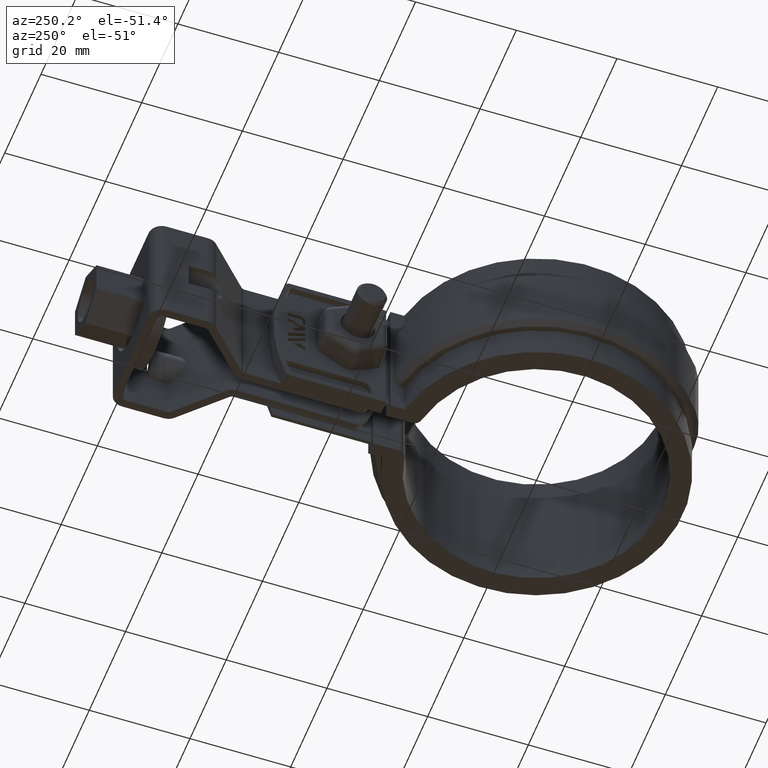
[diagram: clean part render]
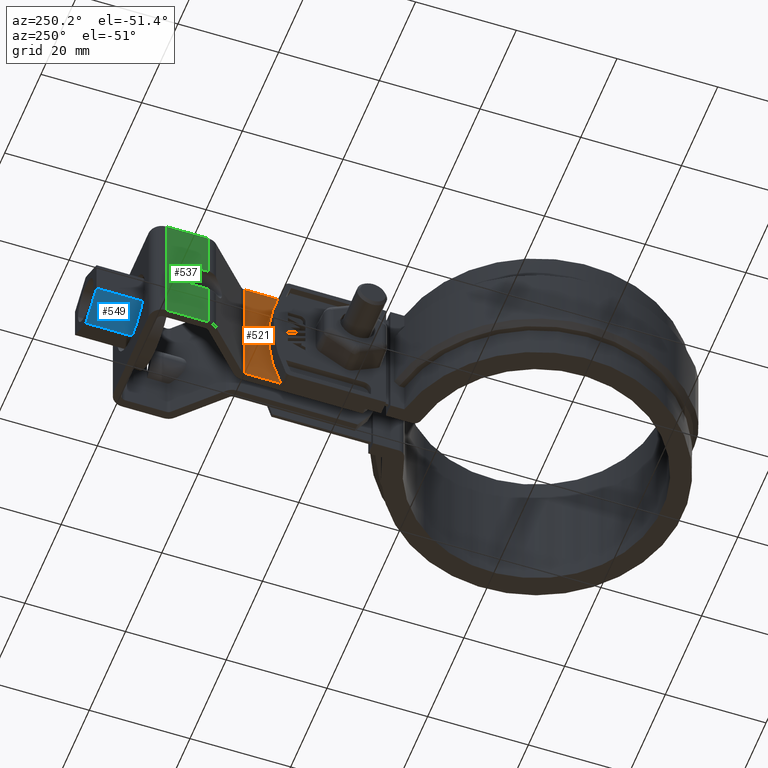
[diagram: same view with three faces highlighted in distinct colors, each labeled with its STEP entity id]
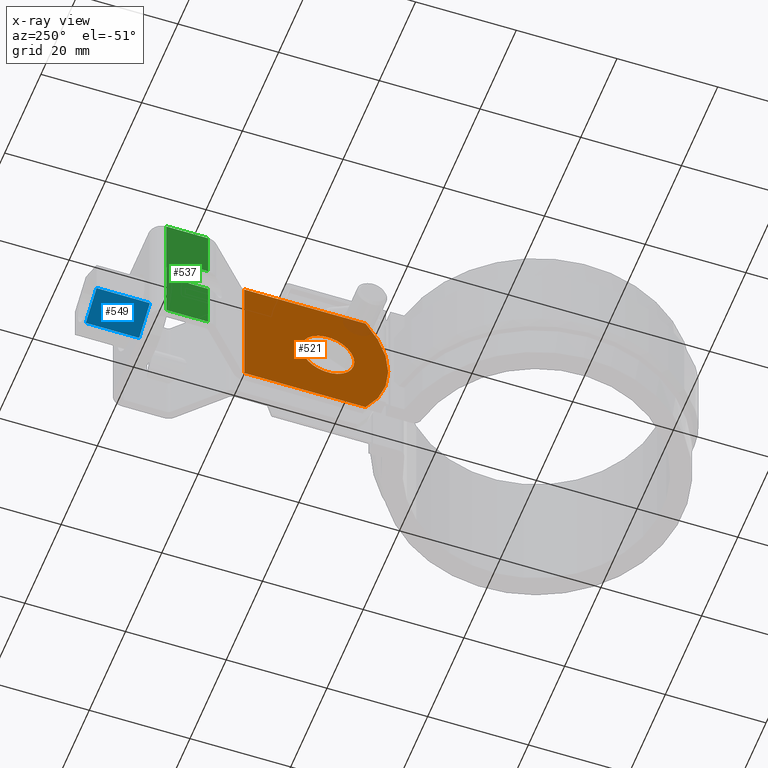
[diagram: x-ray of the same camera — body ghosted, the three highlighted faces saturated]
A machine part, auxiliary view with three faces highlighted in distinct colors.
The next image is the same camera in x-ray (body ghosted, the three faces saturated) — at least one of them is partly hidden behind the body in this view.
Their STEP definitions:

[orange] entity #521 — the highlighted planar face has unit normal (-1, -0, 0).
#521 = ADVANCED_FACE( '', ( #1038, #1039 ), #1040, .T. );
#1038 = FACE_BOUND( '', #2410, .T. );
#1039 = FACE_OUTER_BOUND( '', #2411, .T. );
#1040 = PLANE( '', #2412 );
#2410 = EDGE_LOOP( '', ( #5403 ) );
#2411 = EDGE_LOOP( '', ( #5404, #5405, #5406, #5407 ) );
#2412 = AXIS2_PLACEMENT_3D( '', #5408, #5409, #5410 );
#5403 = ORIENTED_EDGE( '', *, *, #7457, .T. );
#5404 = ORIENTED_EDGE( '', *, *, #7400, .F. );
#5405 = ORIENTED_EDGE( '', *, *, #7448, .T. );
#5406 = ORIENTED_EDGE( '', *, *, #7458, .T. );
#5407 = ORIENTED_EDGE( '', *, *, #7455, .T. );
#5408 = CARTESIAN_POINT( '', ( -3.00000000063062, 59.4754109155617, -25.0000000607952 ) );
#5409 = DIRECTION( '', ( -1.00000000000000, -3.46765258777167E-012, 2.03772028769688E-012 ) );
#5410 = DIRECTION( '', ( -3.46765258880858E-012, 1.00000000000000, -5.08856068393042E-010 ) );
#7400 = EDGE_CURVE( '', #8665, #8667, #8668, .T. );
#7448 = EDGE_CURVE( '', #8665, #8743, #8746, .F. );
#7455 = EDGE_CURVE( '', #8753, #8667, #8757, .T. );
#7457 = EDGE_CURVE( '', #8760, #8760, #8761, .F. );
#7458 = EDGE_CURVE( '', #8743, #8753, #8762, .T. );
#8665 = VERTEX_POINT( '', #12277 );
#8667 = VERTEX_POINT( '', #12279 );
#8668 = LINE( '', #12280, #12281 );
#8743 = VERTEX_POINT( '', #12411 );
#8746 = LINE( '', #12414, #12415 );
#8753 = VERTEX_POINT( '', #12425 );
#8757 = CIRCLE( '', #12430, 19.6111110000000 );
#8760 = VERTEX_POINT( '', #12433 );
#8761 = CIRCLE( '', #12434, 5.25000000000000 );
#8762 = LINE( '', #12435, #12436 );
#12277 = CARTESIAN_POINT( '', ( -3.00000000057822, 59.0539471593930, -6.05807903841793E-008 ) );
#12279 = CARTESIAN_POINT( '', ( -3.00000000049483, 34.9998007928524, -4.24273810528675E-008 ) );
#12280 = CARTESIAN_POINT( '', ( -3.00000000057968, 59.4754109282831, -6.07952438391735E-008 ) );
#12281 = VECTOR( '', #14199, 1000.00000000000 );
#12411 = CARTESIAN_POINT( '', ( -3.00000000062916, 59.0539471466717, -25.0000000605808 ) );
#12414 = CARTESIAN_POINT( '', ( -3.00000000062916, 59.0539471466717, -25.0000000605808 ) );
#12415 = VECTOR( '', #14271, 1000.00000000000 );
#12425 = CARTESIAN_POINT( '', ( -3.00000000054574, 34.9998007752396, -25.0000000483407 ) );
#12430 = AXIS2_PLACEMENT_3D( '', #14282, #14283, #14284 );
#12433 = CARTESIAN_POINT( '', ( -3.00000000056449, 47.7498007485120, -12.5000000548286 ) );
#12434 = AXIS2_PLACEMENT_3D( '', #14288, #14289, #14290 );
#12435 = CARTESIAN_POINT( '', ( -3.00000000063062, 59.4754109155617, -25.0000000607952 ) );
#12436 = VECTOR( '', #14291, 1000.00000000000 );
#14199 = DIRECTION( '', ( 3.46798565571597E-012, -1.00000000000000, 5.08856068393042E-010 ) );
#14271 = DIRECTION( '', ( 2.03772028593234E-012, 5.08856008656157E-010, 1.00000000000000 ) );
#14282 = CARTESIAN_POINT( '', ( -3.00000000057267, 50.1109117485120, -12.5000000560300 ) );
#14283 = DIRECTION( '', ( -1.00000000000000, -3.46765258777167E-012, 2.03772028769688E-012 ) );
#14284 = DIRECTION( '', ( -3.46765258880858E-012, 1.00000000000000, -5.08856068393042E-010 ) );
#14288 = CARTESIAN_POINT( '', ( -3.00000000054628, 42.4998007485120, -12.5000000521571 ) );
#14289 = DIRECTION( '', ( -1.00000000000000, -3.46765258777167E-012, 2.03772028769688E-012 ) );
#14290 = DIRECTION( '', ( -3.46765258880858E-012, 1.00000000000000, -5.08856068393042E-010 ) );
#14291 = DIRECTION( '', ( 3.46798565571597E-012, -1.00000000000000, 5.08856068393042E-010 ) );

[blue] entity #549 — the highlighted planar face has unit normal (0.5, 0, 0.866).
#549 = ADVANCED_FACE( '', ( #1102 ), #1103, .F. );
#1102 = FACE_OUTER_BOUND( '', #2474, .T. );
#1103 = PLANE( '', #2475 );
#2474 = EDGE_LOOP( '', ( #5649, #5650, #5651, #5652 ) );
#2475 = AXIS2_PLACEMENT_3D( '', #5653, #5654, #5655 );
#5649 = ORIENTED_EDGE( '', *, *, #7516, .T. );
#5650 = ORIENTED_EDGE( '', *, *, #7520, .F. );
#5651 = ORIENTED_EDGE( '', *, *, #7521, .F. );
#5652 = ORIENTED_EDGE( '', *, *, #7518, .T. );
#5653 = CARTESIAN_POINT( '', ( -7.23272334158501E-010, 89.4998007450263, -19.3704682794360 ) );
#5654 = DIRECTION( '', ( 0.500000000001765, 4.42416219414441E-010, 0.866025403783420 ) );
#5655 = DIRECTION( '', ( 0.866025403783420, -2.51424766667747E-010, -0.500000000001765 ) );
#7516 = EDGE_CURVE( '', #8854, #8852, #8855, .T. );
#7518 = EDGE_CURVE( '', #8857, #8854, #8858, .T. );
#7520 = EDGE_CURVE( '', #8860, #8852, #8861, .T. );
#7521 = EDGE_CURVE( '', #8857, #8860, #8862, .T. );
#8852 = VERTEX_POINT( '', #12588 );
#8854 = VERTEX_POINT( '', #12591 );
#8855 = LINE( '', #12592, #12593 );
#8857 = VERTEX_POINT( '', #12596 );
#8858 = LINE( '', #12597, #12598 );
#8860 = VERTEX_POINT( '', #12601 );
#8861 = LINE( '', #12602, #12603 );
#8862 = LINE( '', #12604, #12605 );
#12588 = CARTESIAN_POINT( '', ( -5.95000000067951, 78.8998007467538, -15.9352341723517 ) );
#12591 = CARTESIAN_POINT( '', ( -6.86514597767794E-010, 78.8998007450264, -19.3704682740421 ) );
#12592 = CARTESIAN_POINT( '', ( -6.86512863044318E-010, 78.8998007450264, -19.3704682740421 ) );
#12593 = VECTOR( '', #14377, 1000.00000000000 );
#12596 = CARTESIAN_POINT( '', ( -7.23274068881977E-010, 89.4998007450263, -19.3704682794360 ) );
#12597 = CARTESIAN_POINT( '', ( -7.23274068881977E-010, 89.4998007450263, -19.3704682794360 ) );
#12598 = VECTOR( '', #14379, 1000.00000000000 );
#12601 = CARTESIAN_POINT( '', ( -5.95000000071627, 89.4998007467538, -15.9352341777456 ) );
#12602 = CARTESIAN_POINT( '', ( -5.95000000071627, 89.4998007467538, -15.9352341777456 ) );
#12603 = VECTOR( '', #14381, 1000.00000000000 );
#12604 = CARTESIAN_POINT( '', ( -7.23272334158501E-010, 89.4998007450263, -19.3704682794360 ) );
#12605 = VECTOR( '', #14382, 1000.00000000000 );
#14377 = DIRECTION( '', ( -0.866025403783420, 2.51424766667747E-010, 0.500000000001765 ) );
#14379 = DIRECTION( '', ( 3.46787463341350E-012, -1.00000000000000, 5.08856068393042E-010 ) );
#14381 = DIRECTION( '', ( 3.46787463341350E-012, -1.00000000000000, 5.08856068393042E-010 ) );
#14382 = DIRECTION( '', ( -0.866025403783420, 2.51424766667747E-010, 0.500000000001765 ) );

[green] entity #537 — the highlighted planar face has unit normal (-1, -0, 0).
#537 = ADVANCED_FACE( '', ( #1075 ), #1076, .T. );
#1075 = FACE_OUTER_BOUND( '', #2447, .T. );
#1076 = PLANE( '', #2448 );
#2447 = EDGE_LOOP( '', ( #5555, #5556, #5557, #5558, #5559, #5560, #5561, #5562 ) );
#2448 = AXIS2_PLACEMENT_3D( '', #5563, #5564, #5565 );
#5555 = ORIENTED_EDGE( '', *, *, #7502, .F. );
#5556 = ORIENTED_EDGE( '', *, *, #7474, .T. );
#5557 = ORIENTED_EDGE( '', *, *, #7476, .T. );
#5558 = ORIENTED_EDGE( '', *, *, #7471, .F. );
#5559 = ORIENTED_EDGE( '', *, *, #7478, .F. );
#5560 = ORIENTED_EDGE( '', *, *, #7396, .T. );
#5561 = ORIENTED_EDGE( '', *, *, #7403, .T. );
#5562 = ORIENTED_EDGE( '', *, *, #7496, .F. );
#5563 = CARTESIAN_POINT( '', ( -12.2500000006148, 69.5956065539548, -6.59261117919030E-008 ) );
#5564 = DIRECTION( '', ( -1.00000000000000, -3.46787463237663E-012, 2.03765905737930E-012 ) );
#5565 = DIRECTION( '', ( 3.46787463341350E-012, -1.00000000000000, 5.08856068393042E-010 ) );
#7396 = EDGE_CURVE( '', #8659, #8657, #8660, .T. );
#7403 = EDGE_CURVE( '', #8657, #8670, #8673, .T. );
#7471 = EDGE_CURVE( '', #8784, #8786, #8787, .T. );
#7474 = EDGE_CURVE( '', #8791, #8789, #8792, .T. );
#7476 = EDGE_CURVE( '', #8789, #8786, #8794, .T. );
#7478 = EDGE_CURVE( '', #8659, #8784, #8796, .T. );
#7496 = EDGE_CURVE( '', #8820, #8670, #8822, .T. );
#7502 = EDGE_CURVE( '', #8791, #8820, #8831, .T. );
#8657 = VERTEX_POINT( '', #12267 );
#8659 = VERTEX_POINT( '', #12269 );
#8660 = LINE( '', #12270, #12271 );
#8670 = VERTEX_POINT( '', #12284 );
#8673 = LINE( '', #12287, #12288 );
#8784 = VERTEX_POINT( '', #12473 );
#8786 = VERTEX_POINT( '', #12482 );
#8787 = LINE( '', #12483, #12484 );
#8789 = VERTEX_POINT( '', #12486 );
#8791 = VERTEX_POINT( '', #12488 );
#8792 = LINE( '', #12489, #12490 );
#8794 = LINE( '', #12501, #12502 );
#8796 = LINE( '', #12505, #12506 );
#8820 = VERTEX_POINT( '', #12542 );
#8822 = LINE( '', #12544, #12545 );
#8831 = LINE( '', #12556, #12557 );
#12267 = CARTESIAN_POINT( '', ( -12.2500000006436, 77.8998007548406, -7.01517455237166E-008 ) );
#12269 = CARTESIAN_POINT( '', ( -12.2500000006148, 69.5956065539548, -6.59261117919030E-008 ) );
#12270 = CARTESIAN_POINT( '', ( -12.2500000006148, 69.5956065539548, -6.59261117919030E-008 ) );
#12271 = VECTOR( '', #14191, 1000.00000000000 );
#12284 = CARTESIAN_POINT( '', ( -12.2500000006945, 77.8998007421192, -25.0000000701518 ) );
#12287 = CARTESIAN_POINT( '', ( -12.2500000006436, 77.8998007548406, -7.01517455237166E-008 ) );
#12288 = VECTOR( '', #14204, 1000.00000000000 );
#12473 = CARTESIAN_POINT( '', ( -12.2500000006348, 69.5956065489425, -9.85000006592614 ) );
#12482 = CARTESIAN_POINT( '', ( -12.2500000006484, 73.4998007498281, -9.85000006791281 ) );
#12483 = CARTESIAN_POINT( '', ( -12.2500000006137, 63.4998007498282, -9.85000006282424 ) );
#12484 = VECTOR( '', #14309, 1000.00000000000 );
#12486 = CARTESIAN_POINT( '', ( -12.2500000006592, 73.4998007471312, -15.1500000679128 ) );
#12488 = CARTESIAN_POINT( '', ( -12.2500000006456, 69.5956065462456, -15.1500000659261 ) );
#12489 = CARTESIAN_POINT( '', ( -12.2500000006245, 63.4998007471312, -15.1500000628242 ) );
#12490 = VECTOR( '', #14316, 1000.00000000000 );
#12501 = CARTESIAN_POINT( '', ( -12.2500000006624, 73.4998007463173, -16.7500000679127 ) );
#12502 = VECTOR( '', #14317, 1000.00000000000 );
#12505 = CARTESIAN_POINT( '', ( -12.2500000006148, 69.5956065539548, -6.59261117919030E-008 ) );
#12506 = VECTOR( '', #14319, 1000.00000000000 );
#12542 = CARTESIAN_POINT( '', ( -12.2500000006657, 69.5956065412334, -25.0000000659261 ) );
#12544 = CARTESIAN_POINT( '', ( -12.2500000006657, 69.5956065412334, -25.0000000659261 ) );
#12545 = VECTOR( '', #14347, 1000.00000000000 );
#12556 = CARTESIAN_POINT( '', ( -12.2500000006148, 69.5956065539548, -6.59261117919030E-008 ) );
#12557 = VECTOR( '', #14359, 1000.00000000000 );
#14191 = DIRECTION( '', ( -3.46787463341350E-012, 1.00000000000000, -5.08856068393042E-010 ) );
#14204 = DIRECTION( '', ( -2.03765905561465E-012, -5.08856068393049E-010, -1.00000000000000 ) );
#14309 = DIRECTION( '', ( -3.46787463341350E-012, 1.00000000000000, -5.08856068393042E-010 ) );
#14316 = DIRECTION( '', ( -3.46787463341350E-012, 1.00000000000000, -5.08856068393042E-010 ) );
#14317 = DIRECTION( '', ( 2.03765720507867E-012, 5.08856068393049E-010, 1.00000000000000 ) );
#14319 = DIRECTION( '', ( -2.03765905561465E-012, -5.08856068393049E-010, -1.00000000000000 ) );
#14347 = DIRECTION( '', ( -3.46787463341350E-012, 1.00000000000000, -5.08856068393042E-010 ) );
#14359 = DIRECTION( '', ( -2.03765905561465E-012, -5.08856068393049E-010, -1.00000000000000 ) );